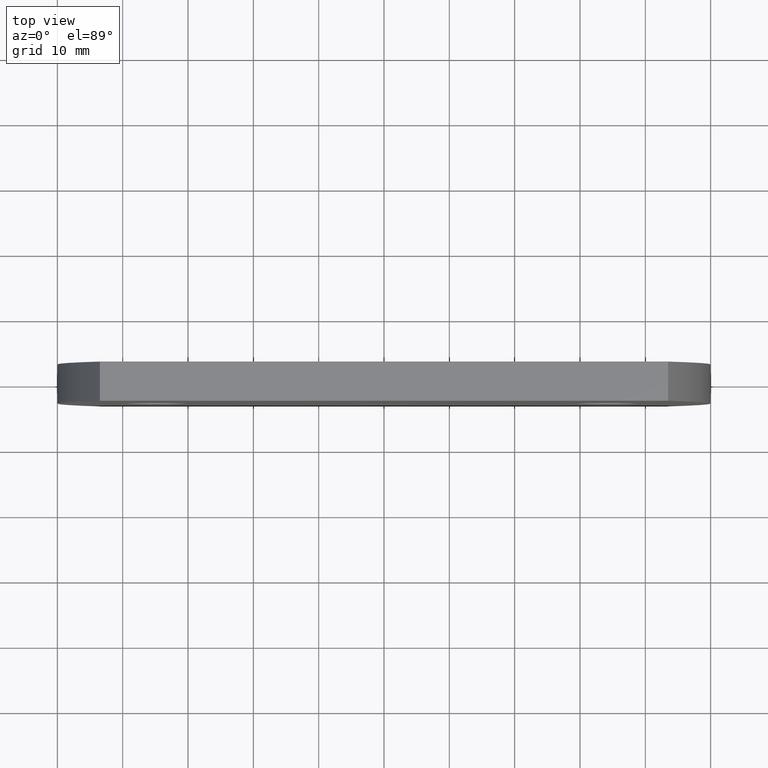
[diagram: clean part render]
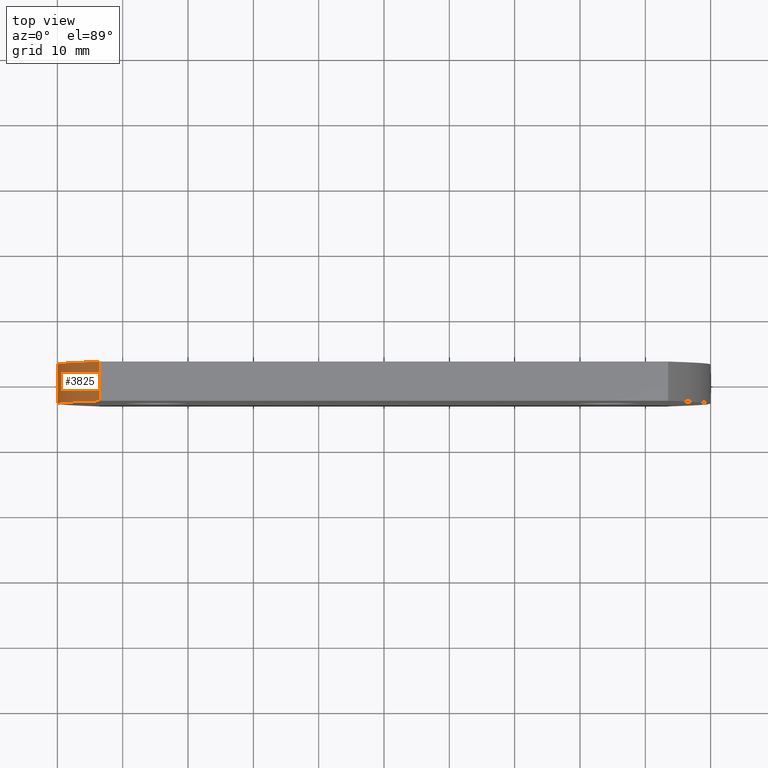
[diagram: same view with one face highlighted and labeled with its STEP entity id]
A machine part, top view. The second image highlights one B-rep face of the part: STEP entity #3825.
In plain terms, the highlighted cylindrical surface (partial cylindrical patch) has radius 51.3269 mm, axis along (-0, -1, -0).
Its self-contained STEP definition (entity closure, byte-faithful):
#190 = DIRECTION ( 'NONE',  ( 0.000000000000000000, 0.000000000000000000, -1.000000000000000000 ) ) ;
#203 = VECTOR ( 'NONE', #8118, 1000.000000000000000 ) ;
#423 = VERTEX_POINT ( 'NONE', #8859 ) ;
#681 = VERTEX_POINT ( 'NONE', #1145 ) ;
#1025 = DIRECTION ( 'NONE',  ( -0.000000000000000000, -1.000000000000000000, -0.000000000000000000 ) ) ;
#1145 = CARTESIAN_POINT ( 'NONE',  ( -43.50000000000000711, -3.000000000000000000, -25.00000000000000000 ) ) ;
#1313 = VECTOR ( 'NONE', #6162, 1000.000000000000000 ) ;
#1752 = EDGE_CURVE ( 'NONE', #681, #4496, #5726, .T. ) ;
#1944 = LINE ( 'NONE', #3332, #203 ) ;
#2901 = AXIS2_PLACEMENT_3D ( 'NONE', #9997, #6064, #7545 ) ;
#2983 = ORIENTED_EDGE ( 'NONE', *, *, #10190, .F. ) ;
#3094 = EDGE_CURVE ( 'NONE', #4130, #681, #3473, .T. ) ;
#3332 = CARTESIAN_POINT ( 'NONE',  ( -43.50000000000000711, 3.000000000000000000, 25.00000000000000000 ) ) ;
#3473 = LINE ( 'NONE', #5347, #1313 ) ;
#3825 = ADVANCED_FACE ( 'NONE', ( #3827 ), #6654, .T. ) ;
#3827 = FACE_OUTER_BOUND ( 'NONE', #7907, .T. ) ;
#3901 = DIRECTION ( 'NONE',  ( 0.000000000000000000, 1.000000000000000000, 0.000000000000000000 ) ) ;
#4130 = VERTEX_POINT ( 'NONE', #5190 ) ;
#4496 = VERTEX_POINT ( 'NONE', #4581 ) ;
#4581 = CARTESIAN_POINT ( 'NONE',  ( -43.50000000000000711, -3.000000000000000000, 25.00000000000000000 ) ) ;
#5190 = CARTESIAN_POINT ( 'NONE',  ( -43.50000000000000711, 3.000000000000000000, -25.00000000000000000 ) ) ;
#5347 = CARTESIAN_POINT ( 'NONE',  ( -43.50000000000000711, 3.000000000000000000, -25.00000000000000000 ) ) ;
#5348 = ORIENTED_EDGE ( 'NONE', *, *, #3094, .T. ) ;
#5726 = CIRCLE ( 'NONE', #9519, 51.32692307692307310 ) ;
#6064 = DIRECTION ( 'NONE',  ( 0.000000000000000000, 1.000000000000000000, 0.000000000000000000 ) ) ;
#6162 = DIRECTION ( 'NONE',  ( -0.000000000000000000, -1.000000000000000000, -0.000000000000000000 ) ) ;
#6597 = EDGE_CURVE ( 'NONE', #4130, #423, #8732, .T. ) ;
#6654 = CYLINDRICAL_SURFACE ( 'NONE', #9606, 51.32692307692307310 ) ;
#7545 = DIRECTION ( 'NONE',  ( 0.000000000000000000, 0.000000000000000000, 1.000000000000000000 ) ) ;
#7907 = EDGE_LOOP ( 'NONE', ( #10245, #2983, #8704, #5348 ) ) ;
#8118 = DIRECTION ( 'NONE',  ( -0.000000000000000000, -1.000000000000000000, -0.000000000000000000 ) ) ;
#8189 = CARTESIAN_POINT ( 'NONE',  ( 1.326923076923072653, 3.000000000000000000, 0.000000000000000000 ) ) ;
#8704 = ORIENTED_EDGE ( 'NONE', *, *, #6597, .F. ) ;
#8732 = CIRCLE ( 'NONE', #2901, 51.32692307692307310 ) ;
#8859 = CARTESIAN_POINT ( 'NONE',  ( -43.50000000000000711, 3.000000000000000000, 25.00000000000000000 ) ) ;
#9419 = DIRECTION ( 'NONE',  ( 0.000000000000000000, 0.000000000000000000, 1.000000000000000000 ) ) ;
#9519 = AXIS2_PLACEMENT_3D ( 'NONE', #10242, #3901, #9419 ) ;
#9606 = AXIS2_PLACEMENT_3D ( 'NONE', #8189, #1025, #190 ) ;
#9997 = CARTESIAN_POINT ( 'NONE',  ( 1.326923076923072653, 3.000000000000000000, 0.000000000000000000 ) ) ;
#10190 = EDGE_CURVE ( 'NONE', #423, #4496, #1944, .T. ) ;
#10242 = CARTESIAN_POINT ( 'NONE',  ( 1.326923076923072653, -3.000000000000000000, 0.000000000000000000 ) ) ;
#10245 = ORIENTED_EDGE ( 'NONE', *, *, #1752, .T. ) ;